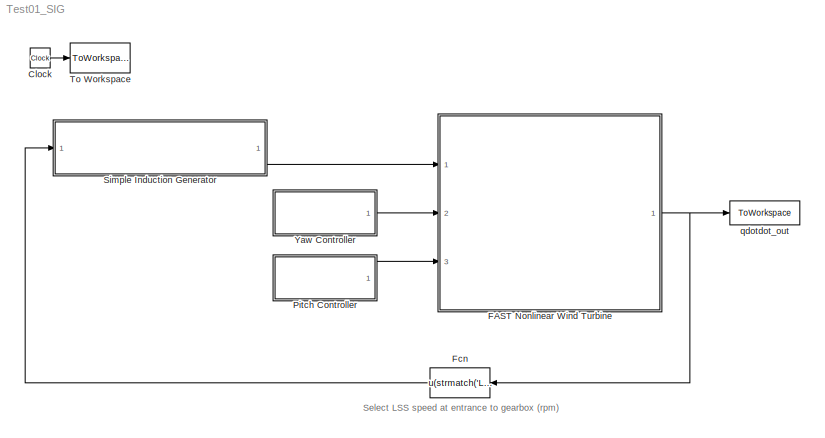
MODEL Test01_SIG
KIND model
BLOCK [Clock] Clock
  Decimation = 10
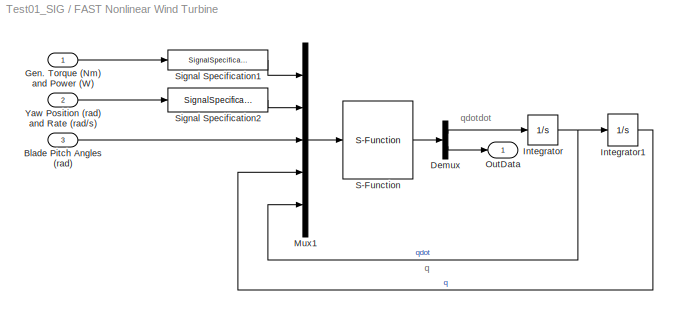
BLOCK [SubSystem] FAST Nonlinear Wind Turbine
  FunctionWithSeparateData = off
  MaskDescription = This block contains the FAST S-Function and blocks that integrate the DOF accelerations to get velocities and displacements.
  MaskHideContents = off
  MaskIconFrame = on
  MaskIconOpaque = on
  MaskIconRotate = none
  MaskIconUnits = autoscale
  MaskInitialization = clear FAST_SFunc\n
  MaskType = FAST Nonlinear Wind Turbine
  MinAlgLoopOccurrences = off
  Opaque = off
  Ports = [3, 1]
  PropExecContextOutsideSubsystem = off
  RTWSystemCode = Auto
  RequestExecContextInheritance = off
BLOCK [Inport] FAST Nonlinear Wind Turbine/Blade Pitch Angles (rad)
  IconDisplay = Port number
  OutDataType = sfix(16)
  OutScaling = 2^0
  Port = 3
BLOCK [Demux] FAST Nonlinear Wind Turbine/Demux
  Outputs = [NDOF, NumOuts]
  Ports = [1, 2]
BLOCK [Inport] FAST Nonlinear Wind Turbine/Gen. Torque (Nm) and Power (W)
  IconDisplay = Port number
  OutDataType = sfix(16)
  OutScaling = 2^0
BLOCK [Integrator] FAST Nonlinear Wind Turbine/Integrator
  InitialCondition = qdot_init
  Ports = [1, 1]
BLOCK [Integrator] FAST Nonlinear Wind Turbine/Integrator1
  InitialCondition = q_init
  Ports = [1, 1]
BLOCK [Mux] FAST Nonlinear Wind Turbine/Mux1
  DisplayOption = bar
  Inputs = 5
  Ports = [5, 1]
BLOCK [Outport] FAST Nonlinear Wind Turbine/OutData
  IconDisplay = Port number
BLOCK [S-Function] FAST Nonlinear Wind Turbine/S-Function
  EnableBusSupport = off
  FunctionName = FAST_SFunc
  Ports = [1, 1]
BLOCK [SignalSpecification] FAST Nonlinear Wind Turbine/Signal Specification1
  DataType = double
  Dimensions = 2
  OutDataType = sfix(16)
  OutDataTypeStr = double
  OutScaling = 2^0
  SignalType = real
BLOCK [SignalSpecification] FAST Nonlinear Wind Turbine/Signal Specification2
  DataType = double
  Dimensions = 2
  OutDataType = sfix(16)
  OutDataTypeStr = double
  OutScaling = 2^0
  SignalType = real
BLOCK [Inport] FAST Nonlinear Wind Turbine/Yaw Position (rad) and Rate (rad//s)
  IconDisplay = Port number
  OutDataType = sfix(16)
  OutScaling = 2^0
  Port = 2
BLOCK [Fcn] Fcn
  Expr = u(strmatch('LSSGagVxa',OutList))
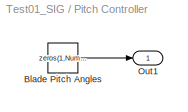
BLOCK [SubSystem] Pitch Controller
  FunctionWithSeparateData = off
  MaskHideContents = off
  MinAlgLoopOccurrences = off
  Opaque = off
  Ports = [0, 1]
  PropExecContextOutsideSubsystem = off
  RTWSystemCode = Auto
  RequestExecContextInheritance = off
BLOCK [Constant] Pitch Controller/Blade Pitch Angles
  OutDataType = sfix(16)
  OutScaling = 2^0
  Value = zeros(1,NumBl)'
BLOCK [Outport] Pitch Controller/Out1
  IconDisplay = Port number
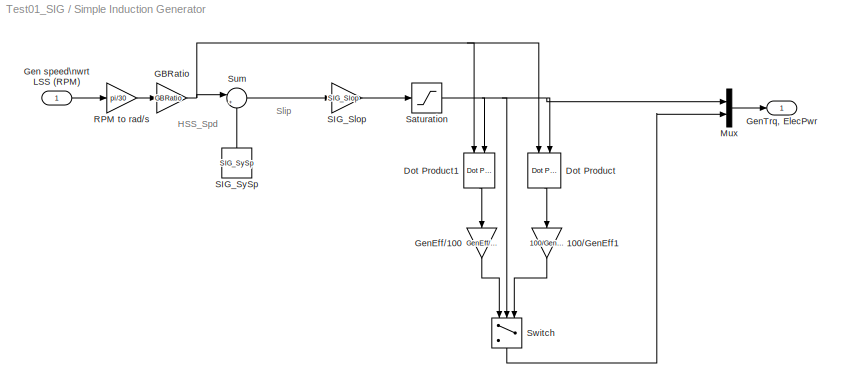
BLOCK [SubSystem] Simple Induction Generator
  FunctionWithSeparateData = off
  MaskHideContents = off
  MinAlgLoopOccurrences = off
  Opaque = off
  Ports = [1, 1]
  PropExecContextOutsideSubsystem = off
  RTWSystemCode = Auto
  RequestExecContextInheritance = off
BLOCK [Gain] Simple Induction Generator/100//GenEff1
  Gain = 100/GenEff
  OutDataType = sfix(16)
  OutScaling = 2^0
  ParameterDataType = sfix(16)
  ParameterScaling = 2^0
BLOCK [Reference] Simple Induction Generator/Dot Product  REF=simulink/Math\nOperations/Dot Product
  DoSatur = off
  InputSameDT = on
  LockScale = off
  OutDataType = sfix(16)
  OutDataTypeStr = Inherit: Inherit via internal rule
  OutScaling = 2^-10
  OutputDataTypeScalingMode = Inherit via internal rule
  Ports = [2, 1]
  RndMeth = Floor
  SourceBlock = simulink/Math\nOperations/Dot Product
  SourceType = Dot Product
BLOCK [Reference] Simple Induction Generator/Dot Product1  REF=simulink/Math\nOperations/Dot Product
  DoSatur = off
  InputSameDT = on
  LockScale = off
  OutDataType = sfix(16)
  OutDataTypeStr = Inherit: Inherit via internal rule
  OutScaling = 2^-10
  OutputDataTypeScalingMode = Inherit via internal rule
  Ports = [2, 1]
  RndMeth = Floor
  SourceBlock = simulink/Math\nOperations/Dot Product
  SourceType = Dot Product
BLOCK [Gain] Simple Induction Generator/GBRatio
  Gain = GBRatio
  OutDataType = sfix(16)
  OutScaling = 2^0
  ParameterDataType = sfix(16)
  ParameterScaling = 2^0
BLOCK [Inport] Simple Induction Generator/Gen speed\nwrt LSS (RPM)
  IconDisplay = Port number
  OutDataType = sfix(16)
  OutScaling = 2^0
BLOCK [Gain] Simple Induction Generator/GenEff//100
  Gain = GenEff/100
  OutDataType = sfix(16)
  OutScaling = 2^0
  ParameterDataType = sfix(16)
  ParameterScaling = 2^0
BLOCK [Outport] Simple Induction Generator/GenTrq, ElecPwr
  IconDisplay = Port number
BLOCK [Mux] Simple Induction Generator/Mux
  DisplayOption = bar
  Inputs = 2
  Ports = [2, 1]
BLOCK [Gain] Simple Induction Generator/RPM to rad//s
  Gain = pi/30
  OutDataType = sfix(16)
  OutScaling = 2^0
  ParameterDataType = sfix(16)
  ParameterScaling = 2^0
BLOCK [Gain] Simple Induction Generator/SIG_Slop
  Gain = SIG_Slop
  OutDataType = sfix(16)
  OutScaling = 2^0
  ParameterDataType = sfix(16)
  ParameterScaling = 2^0
BLOCK [Constant] Simple Induction Generator/SIG_SySp
  OutDataType = sfix(16)
  OutScaling = 2^0
  Value = SIG_SySp
BLOCK [Saturate] Simple Induction Generator/Saturation
  LowerLimit = -(SIG_POTq)
  UpperLimit = SIG_POTq
BLOCK [Sum] Simple Induction Generator/Sum
  IconShape = round
  InputSameDT = off
  Inputs = |+-
  OutDataType = sfix(16)
  OutDataTypeMode = Inherit via internal rule
  OutDataTypeStr = Inherit: Inherit via internal rule
  OutScaling = 2^0
  Ports = [2, 1]
BLOCK [Switch] Simple Induction Generator/Switch
  Criteria = u2 > Threshold
  InputSameDT = off
BLOCK [ToWorkspace] To Workspace
  MaxDataPoints = inf
  SampleTime = -1
  SaveFormat = Array
  VariableName = Time
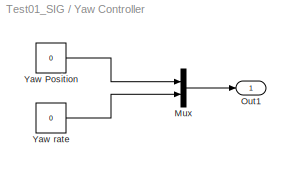
BLOCK [SubSystem] Yaw Controller
  FunctionWithSeparateData = off
  MaskHideContents = off
  MinAlgLoopOccurrences = off
  Opaque = off
  Ports = [0, 1]
  PropExecContextOutsideSubsystem = off
  RTWSystemCode = Auto
  RequestExecContextInheritance = off
BLOCK [Mux] Yaw Controller/Mux
  DisplayOption = bar
  Inputs = 2
  Ports = [2, 1]
BLOCK [Outport] Yaw Controller/Out1
  IconDisplay = Port number
BLOCK [Constant] Yaw Controller/Yaw Position
  OutDataType = sfix(16)
  OutScaling = 2^0
  Value = 0
BLOCK [Constant] Yaw Controller/Yaw rate
  OutDataType = sfix(16)
  OutScaling = 2^0
  Value = 0
BLOCK [ToWorkspace] qdotdot_out
  MaxDataPoints = inf
  SampleTime = -1
  SaveFormat = Array
  VariableName = OutData
ANNOTATION (root): Select LSS speed at entrance to gearbox (rpm)
ANNOTATION FAST Nonlinear Wind Turbine: q
ANNOTATION FAST Nonlinear Wind Turbine: qdotdot
ANNOTATION Simple Induction Generator: HSS_Spd
ANNOTATION Simple Induction Generator: Slip
LINE Clock:1 -> To Workspace:1
LINE FAST Nonlinear Wind Turbine/Blade Pitch Angles (rad):1 -> FAST Nonlinear Wind Turbine/Mux1:3
LINE FAST Nonlinear Wind Turbine/Demux:1 -> FAST Nonlinear Wind Turbine/Integrator:1
LINE FAST Nonlinear Wind Turbine/Demux:2 -> FAST Nonlinear Wind Turbine/OutData:1
LINE FAST Nonlinear Wind Turbine/Gen. Torque (Nm) and Power (W):1 -> FAST Nonlinear Wind Turbine/Signal Specification1:1
LINE FAST Nonlinear Wind Turbine/Integrator1:1 -> FAST Nonlinear Wind Turbine/Mux1:4
NET FAST Nonlinear Wind Turbine/Integrator:1 -> FAST Nonlinear Wind Turbine/Integrator1:1, FAST Nonlinear Wind Turbine/Mux1:5
LINE FAST Nonlinear Wind Turbine/Mux1:1 -> FAST Nonlinear Wind Turbine/S-Function:1
LINE FAST Nonlinear Wind Turbine/S-Function:1 -> FAST Nonlinear Wind Turbine/Demux:1
LINE FAST Nonlinear Wind Turbine/Signal Specification1:1 -> FAST Nonlinear Wind Turbine/Mux1:1
LINE FAST Nonlinear Wind Turbine/Signal Specification2:1 -> FAST Nonlinear Wind Turbine/Mux1:2
LINE FAST Nonlinear Wind Turbine/Yaw Position (rad) and Rate (rad//s):1 -> FAST Nonlinear Wind Turbine/Signal Specification2:1
NET FAST Nonlinear Wind Turbine:1 -> Fcn:1, qdotdot_out:1
LINE Fcn:1 -> Simple Induction Generator:1
LINE Pitch Controller/Blade Pitch Angles:1 -> Pitch Controller/Out1:1
LINE Pitch Controller:1 -> FAST Nonlinear Wind Turbine:3
LINE Simple Induction Generator/100//GenEff1:1 -> Simple Induction Generator/Switch:3
LINE Simple Induction Generator/Dot Product1:1 -> Simple Induction Generator/GenEff//100:1
LINE Simple Induction Generator/Dot Product:1 -> Simple Induction Generator/100//GenEff1:1
NET Simple Induction Generator/GBRatio:1 -> Simple Induction Generator/Dot Product1:1, Simple Induction Generator/Dot Product:1, Simple Induction Generator/Sum:1
LINE Simple Induction Generator/Gen speed\nwrt LSS (RPM):1 -> Simple Induction Generator/RPM to rad//s:1
LINE Simple Induction Generator/GenEff//100:1 -> Simple Induction Generator/Switch:1
LINE Simple Induction Generator/Mux:1 -> Simple Induction Generator/GenTrq, ElecPwr:1
LINE Simple Induction Generator/RPM to rad//s:1 -> Simple Induction Generator/GBRatio:1
LINE Simple Induction Generator/SIG_Slop:1 -> Simple Induction Generator/Saturation:1
LINE Simple Induction Generator/SIG_SySp:1 -> Simple Induction Generator/Sum:2
NET Simple Induction Generator/Saturation:1 -> Simple Induction Generator/Dot Product1:2, Simple Induction Generator/Dot Product:2, Simple Induction Generator/Mux:1, Simple Induction Generator/Switch:2
LINE Simple Induction Generator/Sum:1 -> Simple Induction Generator/SIG_Slop:1
LINE Simple Induction Generator/Switch:1 -> Simple Induction Generator/Mux:2
LINE Simple Induction Generator:1 -> FAST Nonlinear Wind Turbine:1
LINE Yaw Controller/Mux:1 -> Yaw Controller/Out1:1
LINE Yaw Controller/Yaw Position:1 -> Yaw Controller/Mux:1
LINE Yaw Controller/Yaw rate:1 -> Yaw Controller/Mux:2
LINE Yaw Controller:1 -> FAST Nonlinear Wind Turbine:2
note: NET lines group one-source signal fan-out (src -> all destinations, sorted); 1:1 wires keep LINE
